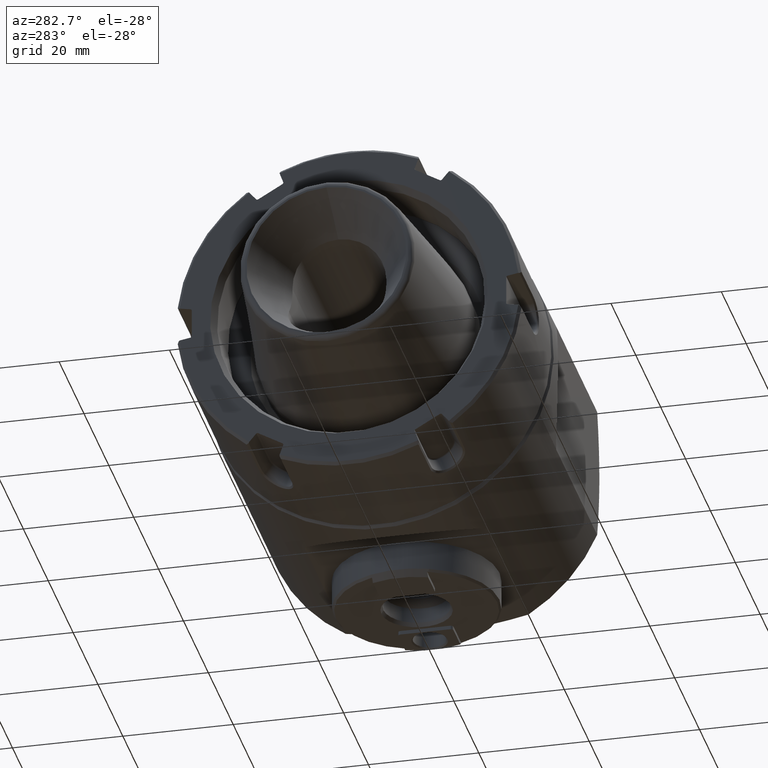
[diagram: clean part render]
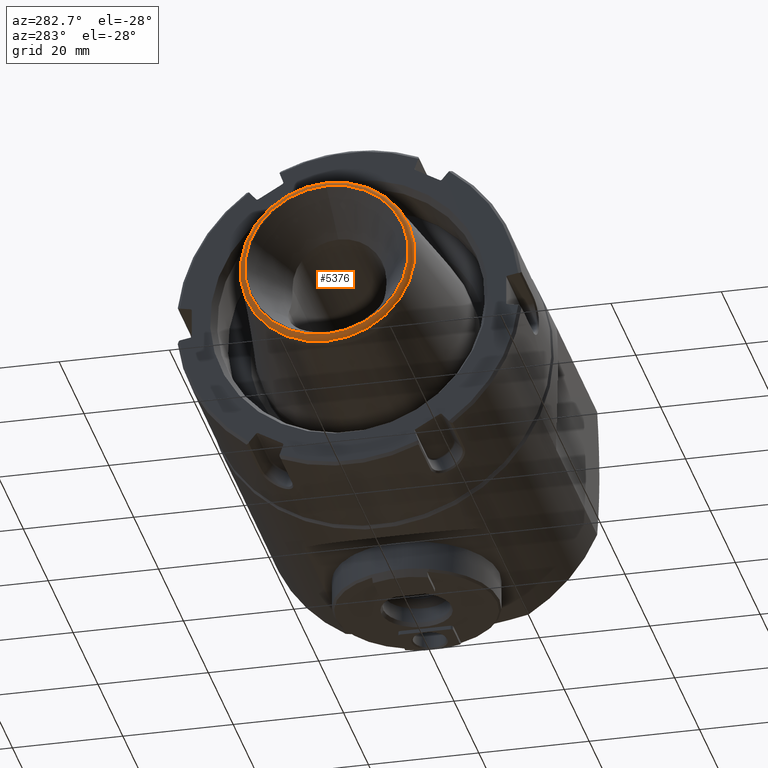
[diagram: same view with one face highlighted and labeled with its STEP entity id]
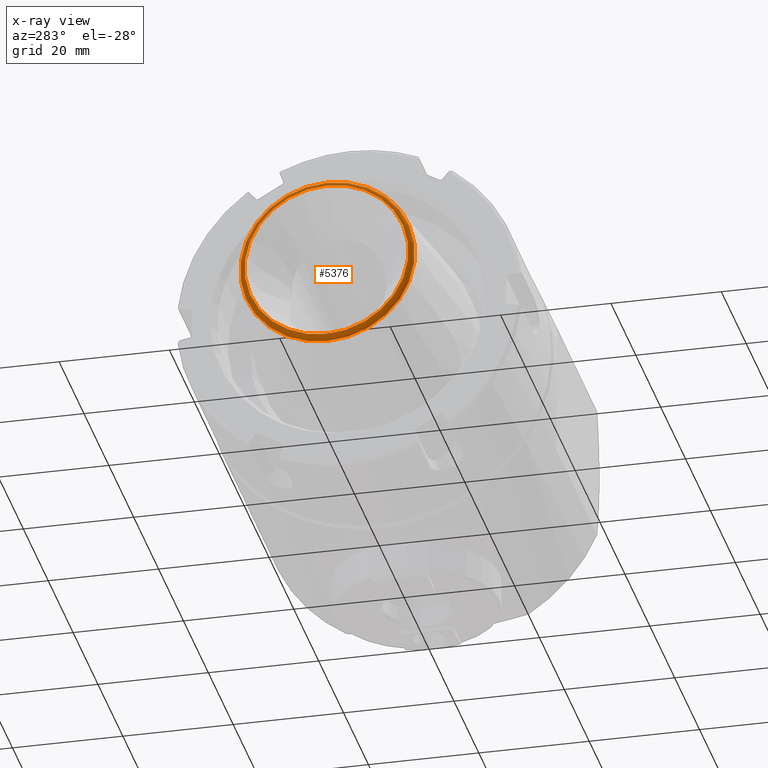
[diagram: x-ray of the same camera — body ghosted, the highlighted face saturated]
A machine part, auxiliary view. The second image highlights one B-rep face of the part: STEP entity #5376.
The next image is the same camera in x-ray: the body ghosted, the highlighted face saturated — about 0% of this face is hidden behind the body in this view.
In plain terms, the highlighted toroidal blend (fillet) surface has major radius 14.8442 mm and minor (blend) radius 1 mm.
Its self-contained STEP definition (entity closure, byte-faithful):
#408 = AXIS2_PLACEMENT_3D ( 'NONE', #14570, #2508, #27819 ) ;
#835 = EDGE_CURVE ( 'NONE', #3272, #3272, #2831, .T. ) ;
#1172 = FACE_OUTER_BOUND ( 'NONE', #26921, .T. ) ;
#1306 = AXIS2_PLACEMENT_3D ( 'NONE', #2789, #28309, #19151 ) ;
#2508 = DIRECTION ( 'NONE',  ( -1.000000000000000000, -0.0000000000000000000, -0.0000000000000000000 ) ) ;
#2789 = CARTESIAN_POINT ( 'NONE',  ( -42.50000000000002100, 0.0000000000000000000, 0.0000000000000000000 ) ) ;
#2831 = CIRCLE ( 'NONE', #1306, 14.84421780376081300 ) ;
#3272 = VERTEX_POINT ( 'NONE', #8567 ) ;
#4595 = DIRECTION ( 'NONE',  ( -1.000000000000000000, -0.0000000000000000000, -0.0000000000000000000 ) ) ;
#5376 = ADVANCED_FACE ( 'NONE', ( #26992, #1172 ), #11885, .T. ) ;
#6775 = CARTESIAN_POINT ( 'NONE',  ( -41.50000000000001400, 0.0000000000000000000, 0.0000000000000000000 ) ) ;
#7730 = CARTESIAN_POINT ( 'NONE',  ( -41.63917310096007900, 0.0000000000000000000, 15.83448587250238900 ) ) ;
#7946 = ORIENTED_EDGE ( 'NONE', *, *, #835, .F. ) ;
#8567 = CARTESIAN_POINT ( 'NONE',  ( -42.50000000000002100, 0.0000000000000000000, 14.84421780376081300 ) ) ;
#11885 = TOROIDAL_SURFACE ( 'NONE', #19571, 14.84421780376081300, 1.000000000000004900 ) ;
#14091 = DIRECTION ( 'NONE',  ( 0.0000000000000000000, 0.0000000000000000000, 1.000000000000000000 ) ) ;
#14570 = CARTESIAN_POINT ( 'NONE',  ( -41.63917310096007900, 0.0000000000000000000, 0.0000000000000000000 ) ) ;
#17230 = VERTEX_POINT ( 'NONE', #7730 ) ;
#18348 = ORIENTED_EDGE ( 'NONE', *, *, #29288, .T. ) ;
#19151 = DIRECTION ( 'NONE',  ( 0.0000000000000000000, 0.0000000000000000000, 1.000000000000000000 ) ) ;
#19571 = AXIS2_PLACEMENT_3D ( 'NONE', #6775, #4595, #14091 ) ;
#24598 = CIRCLE ( 'NONE', #408, 15.83448587250238900 ) ;
#26921 = EDGE_LOOP ( 'NONE', ( #18348 ) ) ;
#26992 = FACE_OUTER_BOUND ( 'NONE', #29541, .T. ) ;
#27819 = DIRECTION ( 'NONE',  ( 0.0000000000000000000, 0.0000000000000000000, 1.000000000000000000 ) ) ;
#28309 = DIRECTION ( 'NONE',  ( -1.000000000000000000, -0.0000000000000000000, -0.0000000000000000000 ) ) ;
#29288 = EDGE_CURVE ( 'NONE', #17230, #17230, #24598, .T. ) ;
#29541 = EDGE_LOOP ( 'NONE', ( #7946 ) ) ;